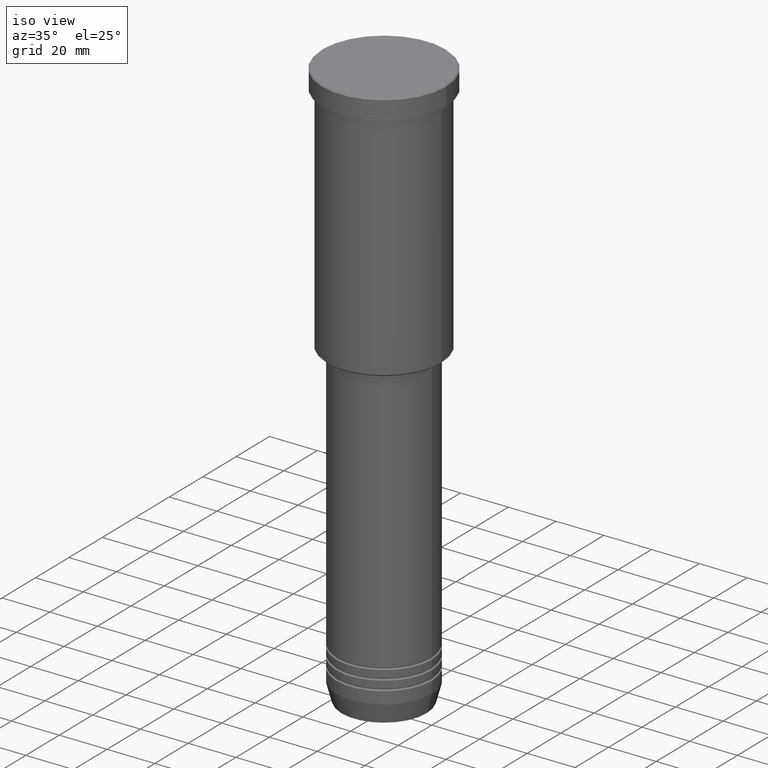
[diagram: clean part render]
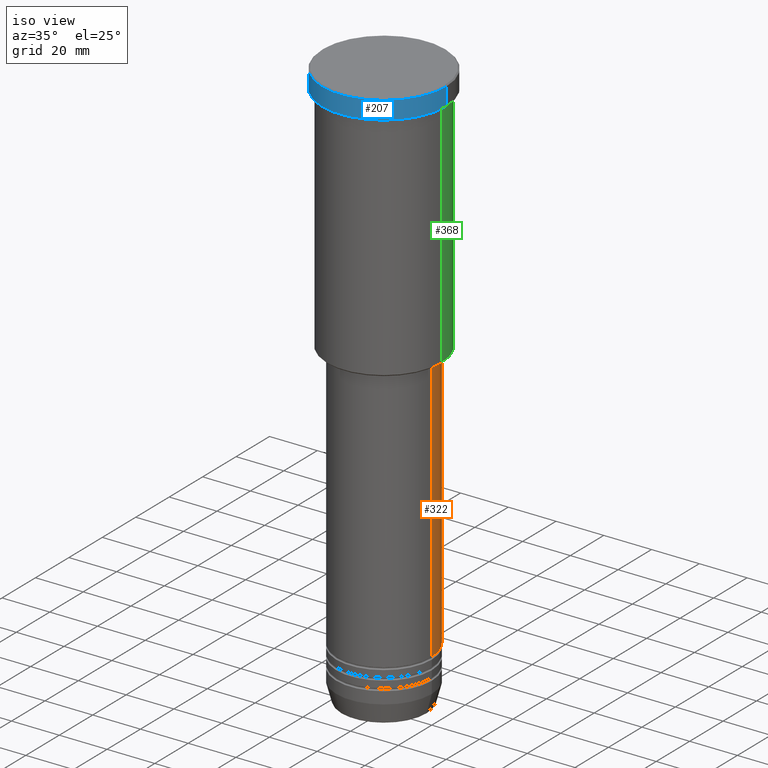
[diagram: same view with three faces highlighted in distinct colors, each labeled with its STEP entity id]
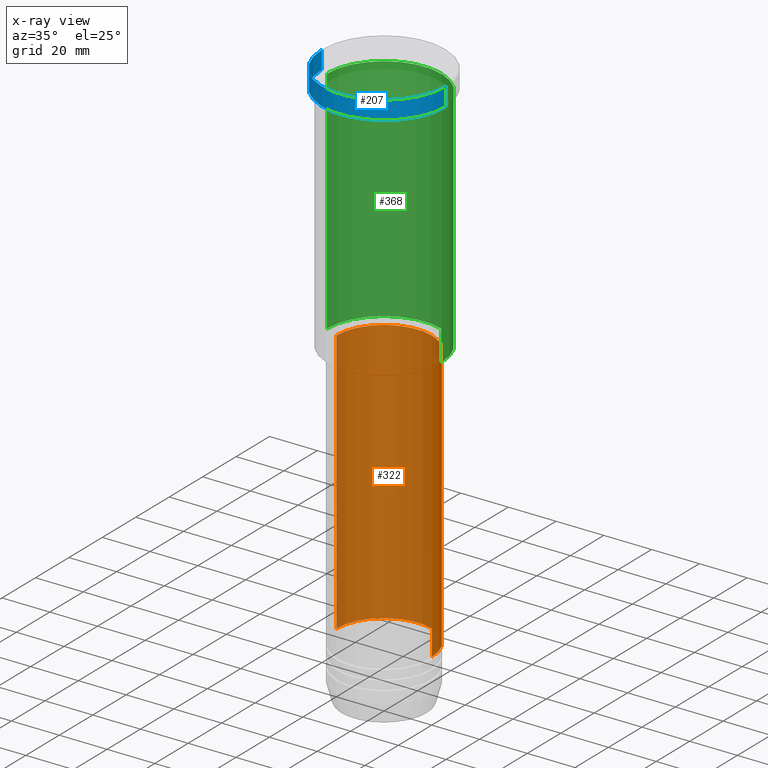
[diagram: x-ray of the same camera — body ghosted, the three highlighted faces saturated]
A machine part, iso view with three faces highlighted in distinct colors.
The next image is the same camera in x-ray (body ghosted, the three faces saturated) — at least one of them is partly hidden behind the body in this view.
Their STEP definitions:

[orange] entity #322 — the highlighted cylindrical surface (partial cylindrical patch) has radius 20 mm, axis along (-0, -0, 1).
#26 = VECTOR ( 'NONE', #539, 1000.000000000000000 ) ;
#46 = CARTESIAN_POINT ( 'NONE',  ( 20.00000000000000355, 0.000000000000000000, 0.000000000000000000 ) ) ;
#50 = VERTEX_POINT ( 'NONE', #152 ) ;
#75 = DIRECTION ( 'NONE',  ( -0.000000000000000000, -0.000000000000000000, 1.000000000000000000 ) ) ;
#76 = ORIENTED_EDGE ( 'NONE', *, *, #230, .T. ) ;
#88 = EDGE_LOOP ( 'NONE', ( #76, #1121, #470, #286 ) ) ;
#137 = AXIS2_PLACEMENT_3D ( 'NONE', #713, #75, #360 ) ;
#150 = EDGE_CURVE ( 'NONE', #642, #465, #653, .T. ) ;
#152 = CARTESIAN_POINT ( 'NONE',  ( -20.00000000000000355, 2.449293598294706907E-15, -218.0000000000000000 ) ) ;
#167 = DIRECTION ( 'NONE',  ( 1.000000000000000000, 0.000000000000000000, 0.000000000000000000 ) ) ;
#220 = AXIS2_PLACEMENT_3D ( 'NONE', #1020, #492, #921 ) ;
#230 = EDGE_CURVE ( 'NONE', #649, #50, #560, .T. ) ;
#232 = CARTESIAN_POINT ( 'NONE',  ( -20.00000000000000355, 2.449293598294706907E-15, -107.0000000000000142 ) ) ;
#237 = CARTESIAN_POINT ( 'NONE',  ( 0.000000000000000000, 0.000000000000000000, 0.000000000000000000 ) ) ;
#286 = ORIENTED_EDGE ( 'NONE', *, *, #340, .F. ) ;
#322 = ADVANCED_FACE ( 'NONE', ( #1079 ), #416, .T. ) ;
#340 = EDGE_CURVE ( 'NONE', #649, #642, #988, .T. ) ;
#343 = CARTESIAN_POINT ( 'NONE',  ( 20.00000000000000355, 0.000000000000000000, -218.0000000000000000 ) ) ;
#360 = DIRECTION ( 'NONE',  ( 1.000000000000000000, 0.000000000000000000, 0.000000000000000000 ) ) ;
#404 = EDGE_CURVE ( 'NONE', #50, #465, #983, .T. ) ;
#416 = CYLINDRICAL_SURFACE ( 'NONE', #1095, 20.00000000000000355 ) ;
#465 = VERTEX_POINT ( 'NONE', #232 ) ;
#470 = ORIENTED_EDGE ( 'NONE', *, *, #150, .F. ) ;
#492 = DIRECTION ( 'NONE',  ( -0.000000000000000000, -0.000000000000000000, 1.000000000000000000 ) ) ;
#539 = DIRECTION ( 'NONE',  ( -0.000000000000000000, -0.000000000000000000, 1.000000000000000000 ) ) ;
#560 = CIRCLE ( 'NONE', #220, 20.00000000000000355 ) ;
#601 = DIRECTION ( 'NONE',  ( -0.000000000000000000, -0.000000000000000000, 1.000000000000000000 ) ) ;
#642 = VERTEX_POINT ( 'NONE', #963 ) ;
#649 = VERTEX_POINT ( 'NONE', #343 ) ;
#653 = CIRCLE ( 'NONE', #137, 20.00000000000000355 ) ;
#709 = CARTESIAN_POINT ( 'NONE',  ( -20.00000000000000355, 2.449293598294706907E-15, 0.000000000000000000 ) ) ;
#713 = CARTESIAN_POINT ( 'NONE',  ( 0.000000000000000000, 0.000000000000000000, -107.0000000000000142 ) ) ;
#921 = DIRECTION ( 'NONE',  ( 1.000000000000000000, 0.000000000000000000, 0.000000000000000000 ) ) ;
#963 = CARTESIAN_POINT ( 'NONE',  ( 20.00000000000000355, 0.000000000000000000, -107.0000000000000142 ) ) ;
#974 = VECTOR ( 'NONE', #1173, 1000.000000000000000 ) ;
#983 = LINE ( 'NONE', #709, #974 ) ;
#988 = LINE ( 'NONE', #46, #26 ) ;
#1020 = CARTESIAN_POINT ( 'NONE',  ( 0.000000000000000000, 0.000000000000000000, -218.0000000000000000 ) ) ;
#1079 = FACE_OUTER_BOUND ( 'NONE', #88, .T. ) ;
#1095 = AXIS2_PLACEMENT_3D ( 'NONE', #237, #601, #167 ) ;
#1121 = ORIENTED_EDGE ( 'NONE', *, *, #404, .T. ) ;
#1173 = DIRECTION ( 'NONE',  ( -0.000000000000000000, -0.000000000000000000, 1.000000000000000000 ) ) ;

[blue] entity #207 — the highlighted cylindrical surface (partial cylindrical patch) has radius 26 mm, axis along (-0, -0, 1).
#10 = ORIENTED_EDGE ( 'NONE', *, *, #181, .T. ) ;
#32 = CARTESIAN_POINT ( 'NONE',  ( 26.00000000000000000, 0.000000000000000000, -0.4999999999999970024 ) ) ;
#83 = DIRECTION ( 'NONE',  ( -0.000000000000000000, -0.000000000000000000, 1.000000000000000000 ) ) ;
#93 = EDGE_CURVE ( 'NONE', #586, #475, #424, .T. ) ;
#128 = VERTEX_POINT ( 'NONE', #732 ) ;
#139 = AXIS2_PLACEMENT_3D ( 'NONE', #1088, #275, #636 ) ;
#169 = CARTESIAN_POINT ( 'NONE',  ( 26.00000000000000000, 0.000000000000000000, -7.999999999999992895 ) ) ;
#181 = EDGE_CURVE ( 'NONE', #475, #128, #671, .T. ) ;
#194 = CARTESIAN_POINT ( 'NONE',  ( -26.00000000000000000, 3.184081677783118191E-15, -7.999999999999992895 ) ) ;
#196 = VERTEX_POINT ( 'NONE', #194 ) ;
#197 = CARTESIAN_POINT ( 'NONE',  ( 0.000000000000000000, 0.000000000000000000, -7.999999999999992895 ) ) ;
#207 = ADVANCED_FACE ( 'NONE', ( #845 ), #396, .T. ) ;
#210 = ORIENTED_EDGE ( 'NONE', *, *, #1027, .F. ) ;
#273 = DIRECTION ( 'NONE',  ( 1.000000000000000000, 0.000000000000000000, 0.000000000000000000 ) ) ;
#275 = DIRECTION ( 'NONE',  ( 0.000000000000000000, 0.000000000000000000, -1.000000000000000000 ) ) ;
#387 = DIRECTION ( 'NONE',  ( 1.000000000000000000, 0.000000000000000000, 0.000000000000000000 ) ) ;
#396 = CYLINDRICAL_SURFACE ( 'NONE', #618, 26.00000000000000000 ) ;
#424 = LINE ( 'NONE', #961, #670 ) ;
#475 = VERTEX_POINT ( 'NONE', #32 ) ;
#517 = DIRECTION ( 'NONE',  ( -0.000000000000000000, -0.000000000000000000, 1.000000000000000000 ) ) ;
#555 = DIRECTION ( 'NONE',  ( -0.000000000000000000, -0.000000000000000000, 1.000000000000000000 ) ) ;
#566 = DIRECTION ( 'NONE',  ( -0.000000000000000000, -0.000000000000000000, 1.000000000000000000 ) ) ;
#586 = VERTEX_POINT ( 'NONE', #169 ) ;
#609 = LINE ( 'NONE', #1075, #972 ) ;
#618 = AXIS2_PLACEMENT_3D ( 'NONE', #664, #555, #387 ) ;
#636 = DIRECTION ( 'NONE',  ( 1.000000000000000000, 0.000000000000000000, 0.000000000000000000 ) ) ;
#664 = CARTESIAN_POINT ( 'NONE',  ( 0.000000000000000000, 0.000000000000000000, 0.000000000000000000 ) ) ;
#670 = VECTOR ( 'NONE', #517, 1000.000000000000000 ) ;
#671 = CIRCLE ( 'NONE', #139, 26.00000000000000000 ) ;
#723 = AXIS2_PLACEMENT_3D ( 'NONE', #197, #566, #273 ) ;
#727 = ORIENTED_EDGE ( 'NONE', *, *, #909, .T. ) ;
#732 = CARTESIAN_POINT ( 'NONE',  ( -26.00000000000000000, 3.184081677783118191E-15, -0.4999999999999970024 ) ) ;
#770 = ORIENTED_EDGE ( 'NONE', *, *, #93, .T. ) ;
#845 = FACE_OUTER_BOUND ( 'NONE', #893, .T. ) ;
#893 = EDGE_LOOP ( 'NONE', ( #210, #727, #770, #10 ) ) ;
#900 = CIRCLE ( 'NONE', #723, 26.00000000000000000 ) ;
#909 = EDGE_CURVE ( 'NONE', #196, #586, #900, .T. ) ;
#961 = CARTESIAN_POINT ( 'NONE',  ( 26.00000000000000000, 0.000000000000000000, 0.000000000000000000 ) ) ;
#972 = VECTOR ( 'NONE', #83, 1000.000000000000000 ) ;
#1027 = EDGE_CURVE ( 'NONE', #196, #128, #609, .T. ) ;
#1075 = CARTESIAN_POINT ( 'NONE',  ( -26.00000000000000000, 3.184081677783118191E-15, 0.000000000000000000 ) ) ;
#1088 = CARTESIAN_POINT ( 'NONE',  ( 0.000000000000000000, 0.000000000000000000, -0.4999999999999970024 ) ) ;

[green] entity #368 — the highlighted cylindrical surface (partial cylindrical patch) has radius 24 mm, axis along (-0, -0, 1).
#2 = LINE ( 'NONE', #370, #1009 ) ;
#15 = CARTESIAN_POINT ( 'NONE',  ( 0.000000000000000000, 0.000000000000000000, -8.999999999999994671 ) ) ;
#73 = DIRECTION ( 'NONE',  ( 1.000000000000000000, 0.000000000000000000, 0.000000000000000000 ) ) ;
#99 = CIRCLE ( 'NONE', #1176, 24.00000000000000000 ) ;
#130 = CARTESIAN_POINT ( 'NONE',  ( 0.000000000000000000, 0.000000000000000000, -105.5000000000000284 ) ) ;
#144 = ORIENTED_EDGE ( 'NONE', *, *, #993, .F. ) ;
#185 = DIRECTION ( 'NONE',  ( 1.000000000000000000, 0.000000000000000000, 0.000000000000000000 ) ) ;
#190 = DIRECTION ( 'NONE',  ( -0.000000000000000000, -0.000000000000000000, 1.000000000000000000 ) ) ;
#219 = ORIENTED_EDGE ( 'NONE', *, *, #428, .T. ) ;
#223 = DIRECTION ( 'NONE',  ( -0.000000000000000000, -0.000000000000000000, 1.000000000000000000 ) ) ;
#285 = LINE ( 'NONE', #568, #298 ) ;
#293 = DIRECTION ( 'NONE',  ( -0.000000000000000000, -0.000000000000000000, 1.000000000000000000 ) ) ;
#298 = VECTOR ( 'NONE', #190, 1000.000000000000000 ) ;
#325 = CARTESIAN_POINT ( 'NONE',  ( 24.00000000000000000, 0.000000000000000000, -8.999999999999994671 ) ) ;
#368 = ADVANCED_FACE ( 'NONE', ( #421 ), #772, .T. ) ;
#370 = CARTESIAN_POINT ( 'NONE',  ( 24.00000000000000000, 0.000000000000000000, 0.000000000000000000 ) ) ;
#382 = DIRECTION ( 'NONE',  ( -0.000000000000000000, -0.000000000000000000, 1.000000000000000000 ) ) ;
#407 = VERTEX_POINT ( 'NONE', #551 ) ;
#421 = FACE_OUTER_BOUND ( 'NONE', #697, .T. ) ;
#428 = EDGE_CURVE ( 'NONE', #1001, #1002, #285, .T. ) ;
#495 = CARTESIAN_POINT ( 'NONE',  ( -24.00000000000000000, 2.939152317953647894E-15, -105.5000000000000284 ) ) ;
#503 = DIRECTION ( 'NONE',  ( -1.000000000000000000, 0.000000000000000000, 0.000000000000000000 ) ) ;
#524 = CIRCLE ( 'NONE', #1047, 24.00000000000000000 ) ;
#540 = ORIENTED_EDGE ( 'NONE', *, *, #780, .T. ) ;
#551 = CARTESIAN_POINT ( 'NONE',  ( 24.00000000000000000, 0.000000000000000000, -105.5000000000000284 ) ) ;
#553 = VERTEX_POINT ( 'NONE', #325 ) ;
#568 = CARTESIAN_POINT ( 'NONE',  ( -24.00000000000000000, 2.939152317953647894E-15, 0.000000000000000000 ) ) ;
#591 = ORIENTED_EDGE ( 'NONE', *, *, #986, .F. ) ;
#697 = EDGE_LOOP ( 'NONE', ( #540, #219, #591, #144 ) ) ;
#705 = AXIS2_PLACEMENT_3D ( 'NONE', #855, #765, #73 ) ;
#765 = DIRECTION ( 'NONE',  ( -0.000000000000000000, -0.000000000000000000, 1.000000000000000000 ) ) ;
#772 = CYLINDRICAL_SURFACE ( 'NONE', #705, 24.00000000000000000 ) ;
#780 = EDGE_CURVE ( 'NONE', #407, #1001, #99, .T. ) ;
#855 = CARTESIAN_POINT ( 'NONE',  ( 0.000000000000000000, 0.000000000000000000, 0.000000000000000000 ) ) ;
#986 = EDGE_CURVE ( 'NONE', #553, #1002, #524, .T. ) ;
#993 = EDGE_CURVE ( 'NONE', #407, #553, #2, .T. ) ;
#1001 = VERTEX_POINT ( 'NONE', #495 ) ;
#1002 = VERTEX_POINT ( 'NONE', #1082 ) ;
#1009 = VECTOR ( 'NONE', #293, 1000.000000000000000 ) ;
#1047 = AXIS2_PLACEMENT_3D ( 'NONE', #15, #382, #185 ) ;
#1082 = CARTESIAN_POINT ( 'NONE',  ( -24.00000000000000000, 2.939152317953647894E-15, -8.999999999999994671 ) ) ;
#1176 = AXIS2_PLACEMENT_3D ( 'NONE', #130, #223, #503 ) ;